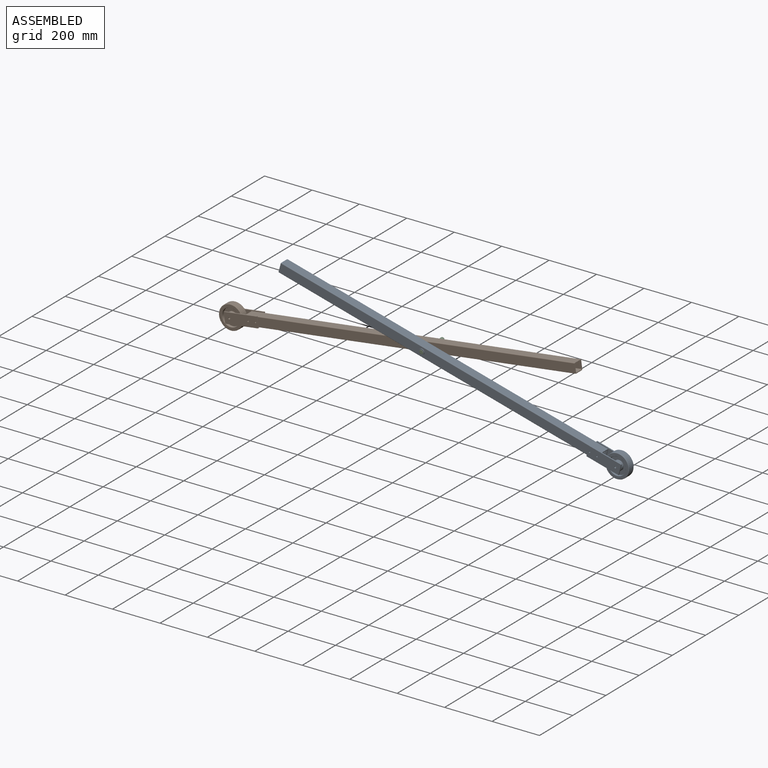
[diagram: assembled view]
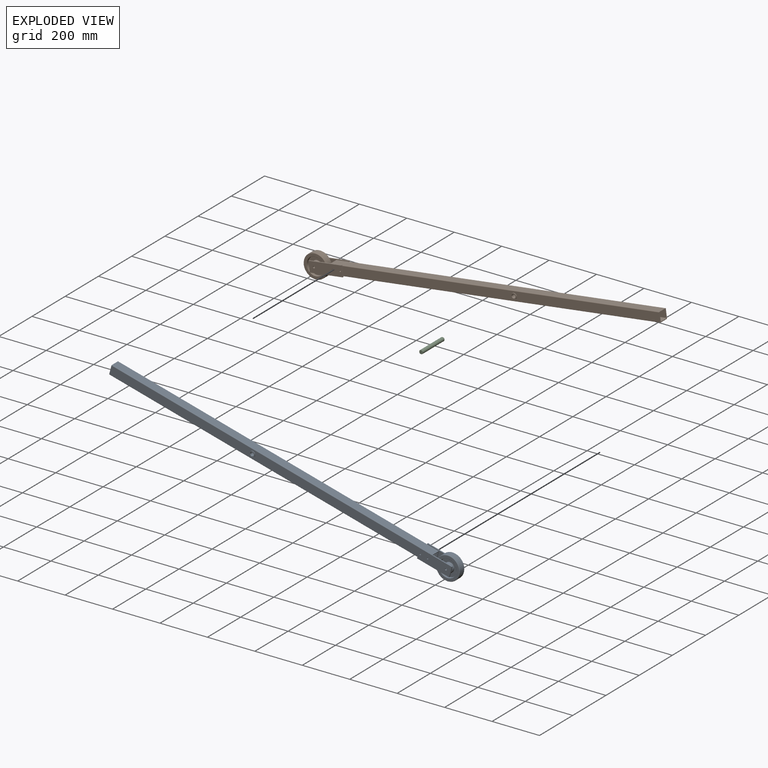
[diagram: exploded view]
GUIDED TOUR — MATED ASSEMBLY WITH SUBASSEMBLIES (Onshape document 15efd71c1603924e5f9fa92a, AutoMate assembly 15efd71c1603924e5f9fa92a_ca3fd9b285ac05b5e3fbfa89_e951f62505115665aa1df28f_default)

This assembly has 11 component occurrences arranged in 3 top-level units: 1 individual components plus 2 subassemblies (S0, S1). The tour has two levels: first the top level, where each subassembly is treated as one rigid unit; then each subassembly is toured internally in its own section (nesting deeper than one subassembly level is flattened into its subassembly's section).

Components are labeled P0..P10 across the whole record; subassembly units are labeled S0..S1. A mate is a constraint between two units; its type names the relative motion it leaves free:
  FASTENED — locks the two components together rigidly (no relative motion),
  REVOLUTE — leaves rotation about the listed axis free (a hinge).
Axis/direction vectors are unit vectors and 'through' points are millimeter coordinates, both in the assembly's world frame.

TOP-LEVEL MATES (between units; each subassembly's internal mates are listed in its own section)
  1. REVOLUTE "Drehen 2": S1 <-> S0, axis (0.000, -1.000, 0.000) through (-1166.84, -342.71, 442.33) mm
  2. REVOLUTE "Drehen 1": P8 <-> S0, axis (0.000, -1.000, 0.000) through (-1166.84, -388.71, 442.33) mm

TOP-LEVEL ASSEMBLY ORDER
  1. P8 — the base component [order verified]
  2. S1 [order verified]
  3. S0 [order verified]
Order-tag legend:
  [order verified] — this step's position reverses a verified removal order: the component was checked to insert without passing through the ones already placed.

Of the 11 component occurrences, 7 carry the full construction recipe — the FeatureScript program that regenerates the part's solid from scratch; the rest are supplied as boundary geometry only. Each toured unit is shown spotlighted twice — assembled, then exploded with a leader line back to its socket (green = recipe-attached component, orange = geometry-only, blue = subassembly unit; the rest desaturated gray).
NOTE — document 2 of 2 of this assembly tour. The two overview renders and the header above are repeated from document 1; the component sections below continue where the previous document stopped.
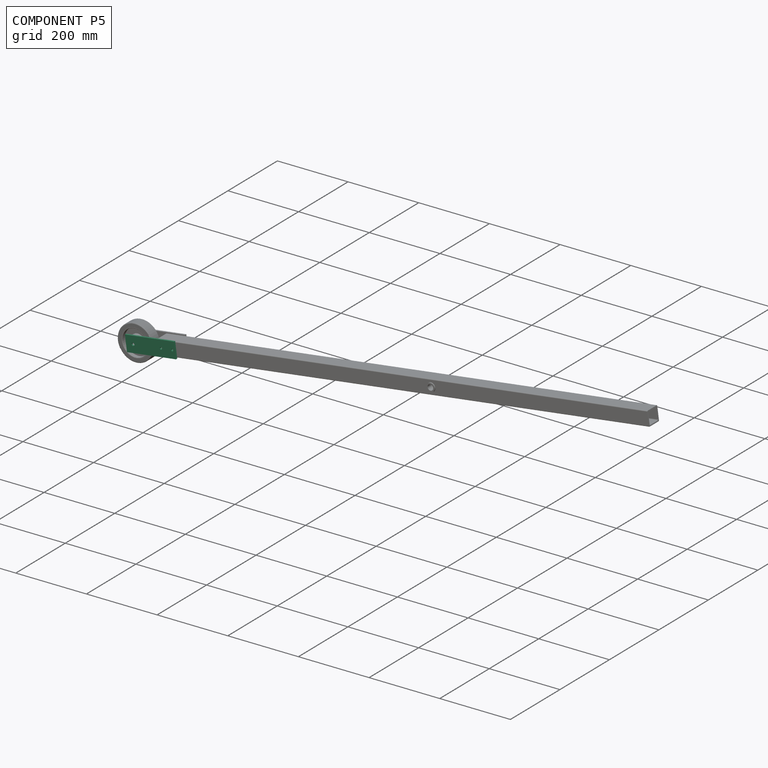
[diagram: component P5 — assembled]
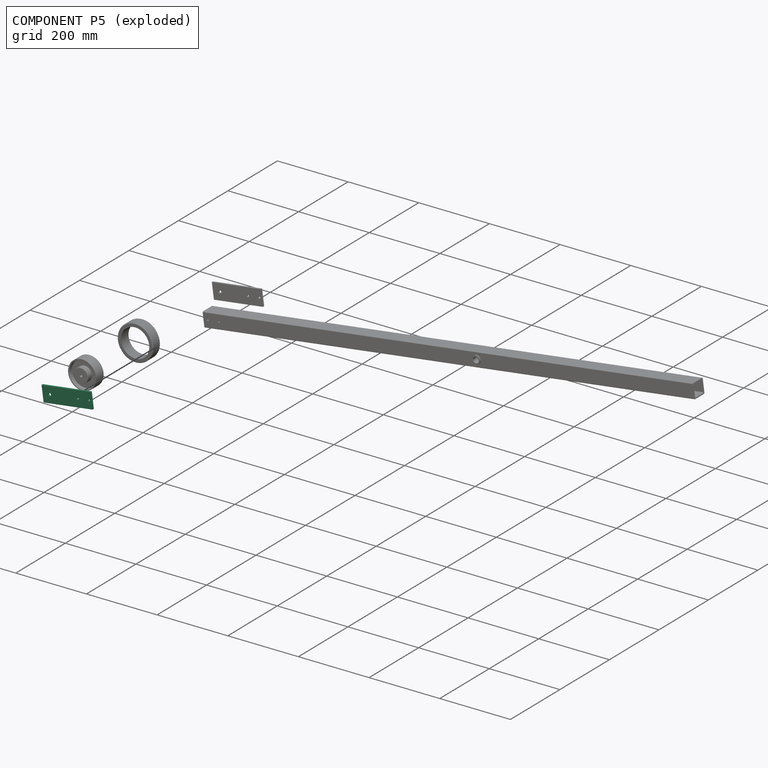
[diagram: component P5 — exploded]
COMPONENT P5 — recipe-attached (CADFS 00886190, mesh-verified: the recipe's output STEP matches this component's geometry to below the mesh-comparison resolution (tessellation chordal tolerance ~0.22 mm)).
Held by: FASTENED mate "Fest 1" to P2; REVOLUTE mate "Drehen 1" to P6; FASTENED mate "Fest 1" to P2; REVOLUTE mate "Drehen 1" to P6.
Construction recipe (FeatureScript — the CAD program that rebuilds this solid; sketch coordinates are in the units given by the * unit suffixes, e.g. mm):

FeatureScript 1634;
import(path : "onshape/std/geometry.fs", version : "1634.0");
import(path : "onshape/std/common.fs", version : "1634.0");
const mm = millimeter;
const VERTEX = EntityType.VERTEX;
const EDGE = EntityType.EDGE;
const FACE = EntityType.FACE;
const BODY = EntityType.BODY;
function v(x, y){return vector(x, y);}
function OD(order){return orderDisambiguation(order);}
function OSD(set){return originalSetDisambiguation(set);}
function TD(topology){return topologyDisambiguation(topology);}
function TDD(query){return trueDependencyDisambiguation(query);}
function sQuery(a, b, c) {return sketchEntityQuery(a, b, c);}

annotation { "Feature Type Name" : "Feature", "Feature Type Description" : "" }
export const myFeature = defineFeature(function(context is Context, id is Id, definition is map)
    precondition{}
    {
        {
            var Q0;
            Q0=qCreatedBy(makeId("Front.planeOp"),FACE);
            var sketch = newSketch(context, id + "F0", { "sketchPlane" : qUnion([Q0])});
            skLineSegment(sketch, "E0.bottom", {"start": v(0, 0) * mm, "end": v(-140, 0) * mm});
            skLineSegment(sketch, "E0.top", {"start": v(0, 44) * mm, "end": v(-140, 44) * mm});
            skLineSegment(sketch, "E0.left", {"start": v(0, 0) * mm, "end": v(0, 44) * mm});
            skLineSegment(sketch, "E0.right", {"start": v(-140, 0) * mm, "end": v(-140, 44) * mm});
            skLineSegment(sketch, "E1.left", {"start": v(6.83, 16.52) * mm, "end": v(6.83, 16.52) * mm});
            skLineSegment(sketch, "E1.right", {"start": v(3.62, 16.52) * mm, "end": v(3.62, 16.52) * mm});
            skCircle(sketch, "E2", {"center": v(-120, 22) * mm, "radius": 4 * mm});
            skLineSegment(sketch, "E3", {"start": v(-120, 22) * mm, "end": v(-22.8, 22) * mm, "construction": true});
            skCircle(sketch, "E4", {"center": v(-8, 22) * mm, "radius": 3 * mm});
            skCircle(sketch, "E5", {"center": v(-40, 22) * mm, "radius": 3 * mm});
            skSolve(sketch);
        }
        {
            var Q0;
            Q0=makeQuery(id+"F0.imprint","IMPRINT",FACE,{"disambiguationData":[TD([[makeQuery(id+"F0.imprint","IMPRINT",EDGE,{"derivedFrom":sQuery(id+"F0.wireOp",EDGE,"E0.bottom")}),-1.0]])]});
            extrude(context, id + "F1", {"entities" : qUnion([Q0]), "depth" : 5 * mm, "offsetDistance" : 25 * mm});
        }
    });
PROVENANCE & LICENSES
Assembly (occurrences, transforms, mates, per-part STEP geometry): AutoMate dataset, Zenodo record 7776208, CC0.
Construction recipes: CADFS (HuggingFace VladPyatov/CADFS, CC-BY-4.0, layered over the ABC dataset), FeatureScript reconstruction programs keyed by ABC model id.
Join: ABC meta listings map ABC model id -> Onshape documentId; within a shared document, parts are matched by geometric signature (bounding-box dims + volume at 0.1% relative tolerance, exact B-rep face/solid counts).
Verification: 7 of this assembly's 11 components carry a recipe attachment, and every attachment is mesh-verified: the CADFS STEP and the AutoMate member STEP were compared as meshes in their shared local frame (symmetric sampled-point-to-mesh distance); worst across the 7 attachments: below the mesh-comparison resolution (tessellation chordal tolerance ~2.1 mm) on a 1401 mm part.
Renders: orthographic iso camera (az 35 / el 25); the floor grid conveys scale (grid pitch printed in each image; no ruler). In the exploded view each component is displaced by its stored offset vector: the offsets alone carry the explosion direction (mate normal/axis signs are not orientation cues and do not encode it), and separation distances are assigned per mate-chain, not proportionally to assembly-order depth.
